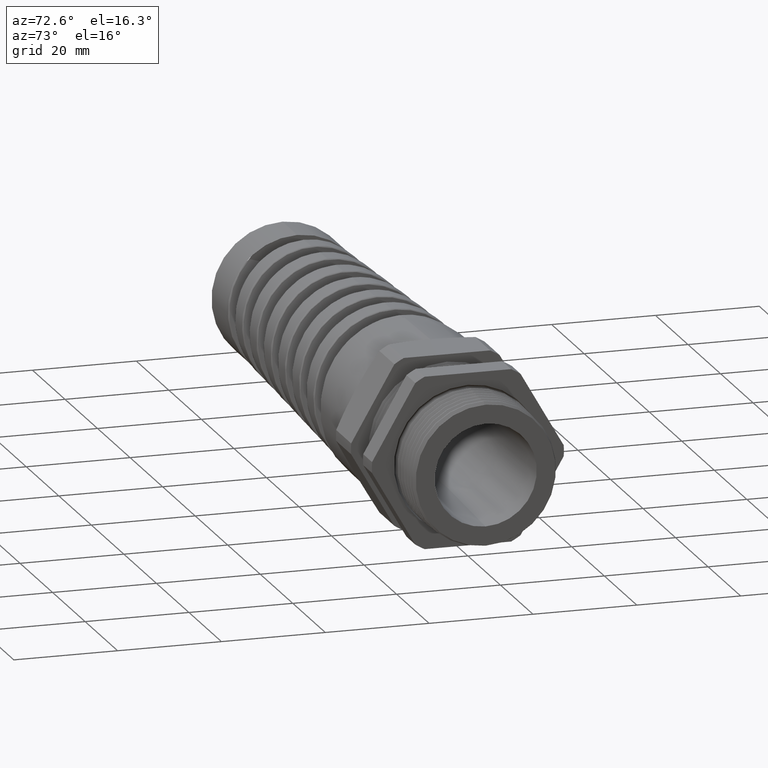
[diagram: clean part render]
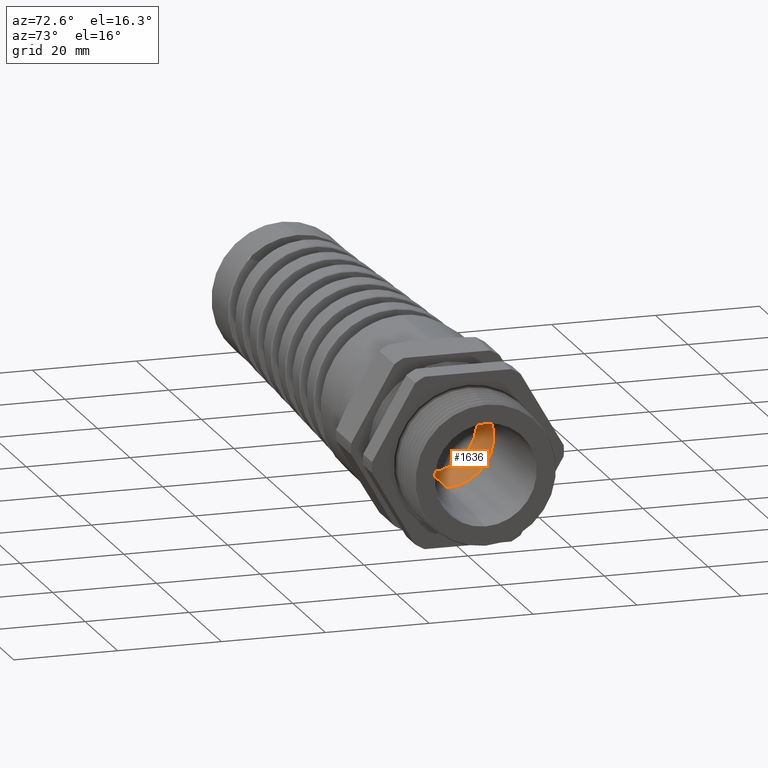
[diagram: same view with one face highlighted and labeled with its STEP entity id]
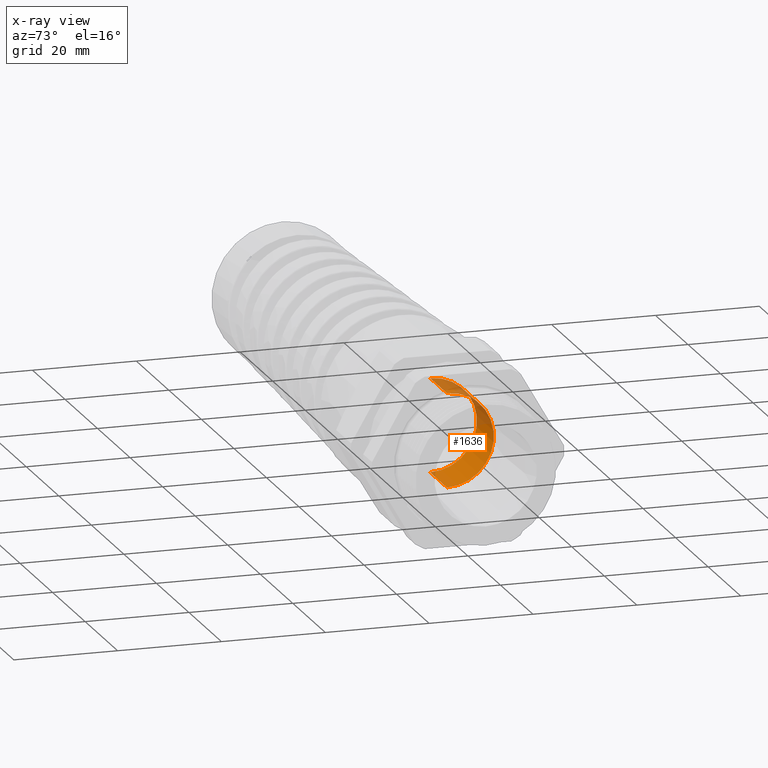
[diagram: x-ray of the same camera — body ghosted, the highlighted face saturated]
A machine part, auxiliary view. The second image highlights one B-rep face of the part: STEP entity #1636.
The next image is the same camera in x-ray: the body ghosted, the highlighted face saturated — about 25% of this face is hidden behind the body in this view.
In plain terms, the highlighted cylindrical surface (partial cylindrical patch) has radius 9.017 mm, axis along (-1, 0, 0).
Its self-contained STEP definition (entity closure, byte-faithful):
#996 = VERTEX_POINT ( 'NONE', #3361 ) ;
#1003 = VERTEX_POINT ( 'NONE', #3406 ) ;
#1534 = ORIENTED_EDGE ( 'NONE', *, *, #1538, .F. ) ;
#1535 = ORIENTED_EDGE ( 'NONE', *, *, #1539, .T. ) ;
#1536 = EDGE_LOOP ( 'NONE', ( #1540, #1534, #1537, #1535 ) ) ;
#1537 = ORIENTED_EDGE ( 'NONE', *, *, #1674, .T. ) ;
#1538 = EDGE_CURVE ( 'NONE', #996, #1003, #9203, .T. ) ;
#1539 = EDGE_CURVE ( 'NONE', #2178, #6044, #9195, .T. ) ;
#1540 = ORIENTED_EDGE ( 'NONE', *, *, #1681, .F. ) ;
#1636 = ADVANCED_FACE ( 'NONE', ( #9189 ), #9187, .F. ) ;
#1674 = EDGE_CURVE ( 'NONE', #996, #2178, #9343, .T. ) ;
#1681 = EDGE_CURVE ( 'NONE', #1003, #6044, #9334, .T. ) ;
#2178 = VERTEX_POINT ( 'NONE', #10075 ) ;
#3361 = CARTESIAN_POINT ( 'NONE',  ( -0.5058333333333334700, 0.0000000000000000000, 0.3549999999999999800 ) ) ;
#3406 = CARTESIAN_POINT ( 'NONE',  ( -0.5058333333333334700, 4.347496136973103500E-017, -0.3549999999999999800 ) ) ;
#6044 = VERTEX_POINT ( 'NONE', #12290 ) ;
#9179 = DIRECTION ( 'NONE',  ( 0.0000000000000000000, 0.0000000000000000000, 1.000000000000000000 ) ) ;
#9181 = DIRECTION ( 'NONE',  ( -1.000000000000000000, 0.0000000000000000000, 0.0000000000000000000 ) ) ;
#9182 = CARTESIAN_POINT ( 'NONE',  ( -0.7238591030180623300, 0.0000000000000000000, 0.0000000000000000000 ) ) ;
#9184 = AXIS2_PLACEMENT_3D ( 'NONE', #9182, #9181, #9179 ) ;
#9187 = CYLINDRICAL_SURFACE ( 'NONE', #9184, 0.3549999999999999800 ) ;
#9189 = FACE_OUTER_BOUND ( 'NONE', #1536, .T. ) ;
#9190 = DIRECTION ( 'NONE',  ( 0.0000000000000000000, 0.0000000000000000000, 1.000000000000000000 ) ) ;
#9191 = DIRECTION ( 'NONE',  ( -1.000000000000000000, 0.0000000000000000000, 0.0000000000000000000 ) ) ;
#9192 = CARTESIAN_POINT ( 'NONE',  ( -0.9125000000000002000, 0.0000000000000000000, 0.0000000000000000000 ) ) ;
#9194 = AXIS2_PLACEMENT_3D ( 'NONE', #9192, #9191, #9190 ) ;
#9195 = CIRCLE ( 'NONE', #9194, 0.3549999999999999800 ) ;
#9197 = DIRECTION ( 'NONE',  ( 0.0000000000000000000, 0.0000000000000000000, 1.000000000000000000 ) ) ;
#9199 = DIRECTION ( 'NONE',  ( -1.000000000000000000, 0.0000000000000000000, 0.0000000000000000000 ) ) ;
#9200 = CARTESIAN_POINT ( 'NONE',  ( -0.5058333333333334700, 0.0000000000000000000, 0.0000000000000000000 ) ) ;
#9201 = AXIS2_PLACEMENT_3D ( 'NONE', #9200, #9199, #9197 ) ;
#9203 = CIRCLE ( 'NONE', #9201, 0.3549999999999999800 ) ;
#9331 = DIRECTION ( 'NONE',  ( -1.000000000000000000, 0.0000000000000000000, 0.0000000000000000000 ) ) ;
#9332 = VECTOR ( 'NONE', #9331, 39.37007874015748100 ) ;
#9333 = CARTESIAN_POINT ( 'NONE',  ( -0.7238591030180623300, 4.347496136973103500E-017, -0.3549999999999999800 ) ) ;
#9334 = LINE ( 'NONE', #9333, #9332 ) ;
#9338 = DIRECTION ( 'NONE',  ( -1.000000000000000000, 0.0000000000000000000, 0.0000000000000000000 ) ) ;
#9340 = VECTOR ( 'NONE', #9338, 39.37007874015748100 ) ;
#9342 = CARTESIAN_POINT ( 'NONE',  ( -0.7238591030180623300, 0.0000000000000000000, 0.3549999999999999800 ) ) ;
#9343 = LINE ( 'NONE', #9342, #9340 ) ;
#10075 = CARTESIAN_POINT ( 'NONE',  ( -0.9125000000000002000, 0.0000000000000000000, 0.3549999999999999800 ) ) ;
#12290 = CARTESIAN_POINT ( 'NONE',  ( -0.9125000000000002000, 4.347496136973103500E-017, -0.3549999999999999800 ) ) ;